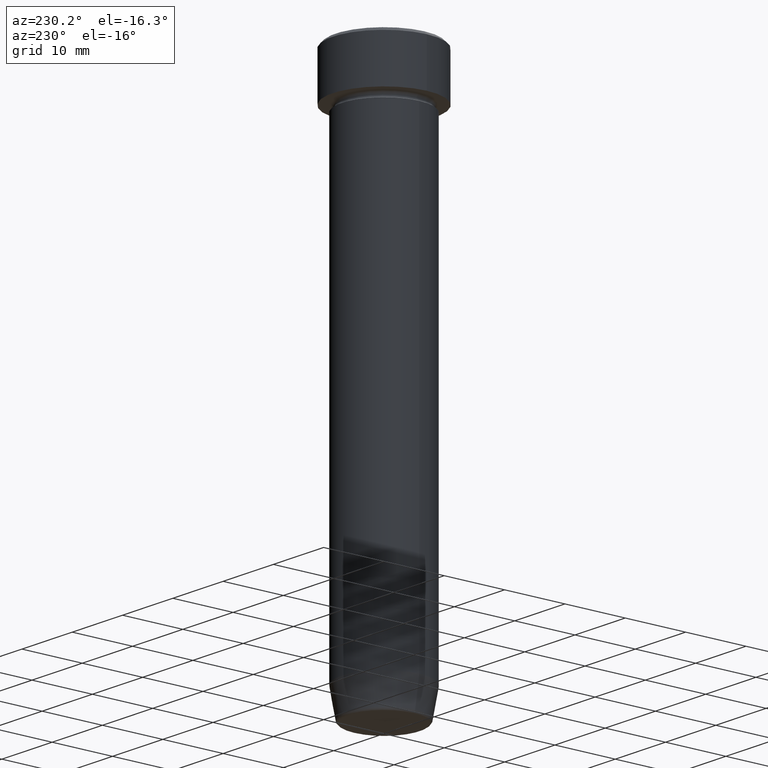
[diagram: clean part render]
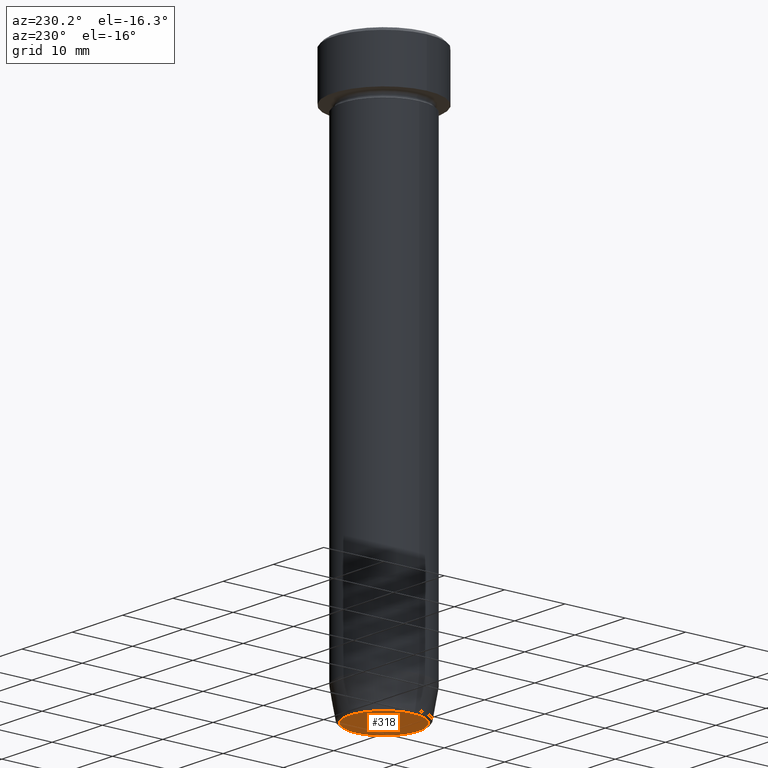
[diagram: same view with one face highlighted and labeled with its STEP entity id]
A machine part, auxiliary view. The second image highlights one B-rep face of the part: STEP entity #318.
In plain terms, the highlighted planar face has unit normal (0, -0, 1).
Its self-contained STEP definition (entity closure, byte-faithful):
#29 = DIRECTION ( 'NONE',  ( 1.000000000000000000, 0.000000000000000000, 0.000000000000000000 ) ) ;
#35 = EDGE_CURVE ( 'NONE', #397, #561, #563, .T. ) ;
#59 = CARTESIAN_POINT ( 'NONE',  ( 0.000000000000000000, 4.898587196589413815E-15, -90.00000000000000000 ) ) ;
#158 = DIRECTION ( 'NONE',  ( 0.000000000000000000, -0.000000000000000000, 1.000000000000000000 ) ) ;
#207 = AXIS2_PLACEMENT_3D ( 'NONE', #59, #158, #459 ) ;
#210 = CARTESIAN_POINT ( 'NONE',  ( 0.000000000000000000, 0.000000000000000000, -90.00000000000000000 ) ) ;
#237 = ORIENTED_EDGE ( 'NONE', *, *, #35, .T. ) ;
#240 = EDGE_LOOP ( 'NONE', ( #373, #237 ) ) ;
#249 = PLANE ( 'NONE',  #207 ) ;
#290 = FACE_OUTER_BOUND ( 'NONE', #240, .T. ) ;
#296 = CARTESIAN_POINT ( 'NONE',  ( 5.698815280869032662, 0.000000000000000000, -90.00000000000000000 ) ) ;
#318 = ADVANCED_FACE ( 'NONE', ( #290 ), #249, .F. ) ;
#338 = AXIS2_PLACEMENT_3D ( 'NONE', #210, #524, #29 ) ;
#373 = ORIENTED_EDGE ( 'NONE', *, *, #551, .T. ) ;
#387 = DIRECTION ( 'NONE',  ( 0.000000000000000000, 0.000000000000000000, -1.000000000000000000 ) ) ;
#390 = AXIS2_PLACEMENT_3D ( 'NONE', #587, #387, #531 ) ;
#397 = VERTEX_POINT ( 'NONE', #572 ) ;
#459 = DIRECTION ( 'NONE',  ( 1.000000000000000000, 0.000000000000000000, 0.000000000000000000 ) ) ;
#471 = CIRCLE ( 'NONE', #338, 5.698815280869032662 ) ;
#524 = DIRECTION ( 'NONE',  ( 0.000000000000000000, 0.000000000000000000, -1.000000000000000000 ) ) ;
#531 = DIRECTION ( 'NONE',  ( 1.000000000000000000, 0.000000000000000000, 0.000000000000000000 ) ) ;
#551 = EDGE_CURVE ( 'NONE', #561, #397, #471, .T. ) ;
#561 = VERTEX_POINT ( 'NONE', #296 ) ;
#563 = CIRCLE ( 'NONE', #390, 5.698815280869032662 ) ;
#572 = CARTESIAN_POINT ( 'NONE',  ( -5.698815280869032662, 7.280546308273760746E-16, -90.00000000000000000 ) ) ;
#587 = CARTESIAN_POINT ( 'NONE',  ( 0.000000000000000000, 0.000000000000000000, -90.00000000000000000 ) ) ;